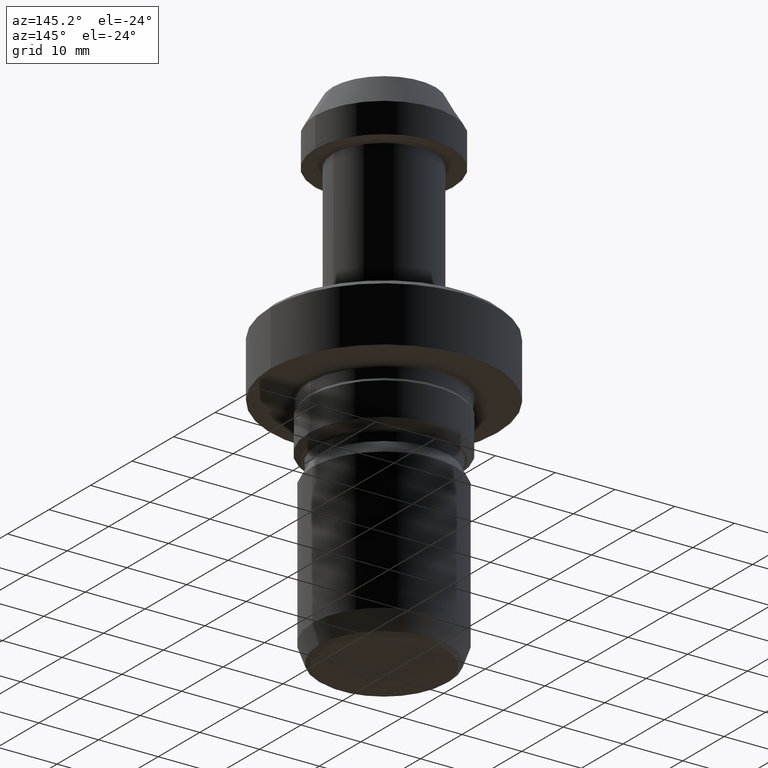
[diagram: clean part render]
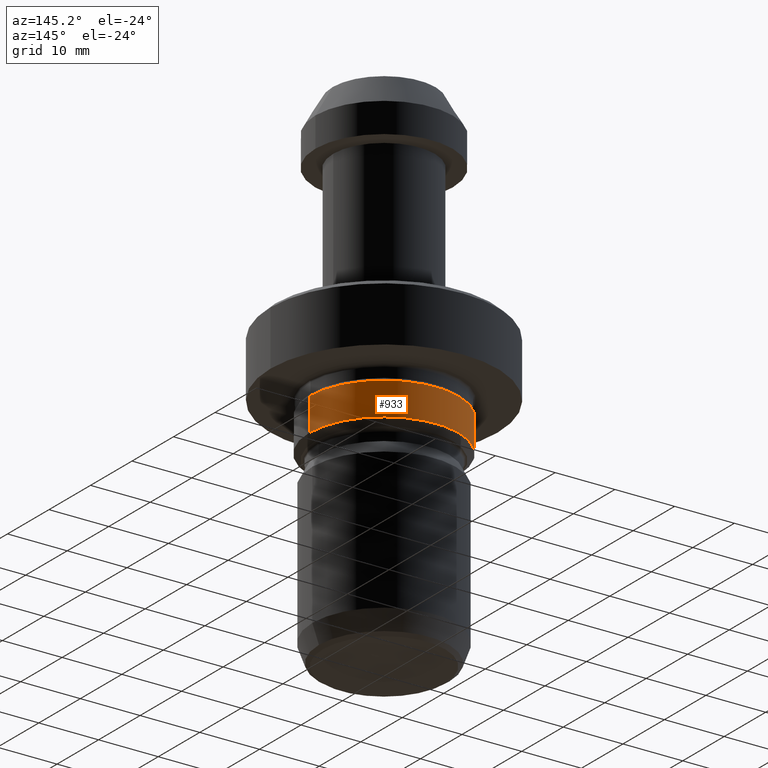
[diagram: same view with one face highlighted and labeled with its STEP entity id]
A machine part, auxiliary view. The second image highlights one B-rep face of the part: STEP entity #933.
In plain terms, the highlighted cylindrical surface (partial cylindrical patch) has radius 12.5 mm, axis along (-0, -0, 1).
Its self-contained STEP definition (entity closure, byte-faithful):
#28 = ORIENTED_EDGE ( 'NONE', *, *, #560, .F. ) ;
#121 = AXIS2_PLACEMENT_3D ( 'NONE', #849, #412, #228 ) ;
#228 = DIRECTION ( 'NONE',  ( 1.000000000000000000, 0.0000000000000000000, 0.0000000000000000000 ) ) ;
#247 = CARTESIAN_POINT ( 'NONE',  ( 12.50000000000000000, 0.0000000000000000000, 0.0000000000000000000 ) ) ;
#267 = VERTEX_POINT ( 'NONE', #959 ) ;
#302 = DIRECTION ( 'NONE',  ( -0.0000000000000000000, -0.0000000000000000000, 1.000000000000000000 ) ) ;
#357 = LINE ( 'NONE', #247, #801 ) ;
#368 = EDGE_CURVE ( 'NONE', #979, #792, #652, .T. ) ;
#373 = CARTESIAN_POINT ( 'NONE',  ( 0.0000000000000000000, 0.0000000000000000000, -52.99999999999999300 ) ) ;
#412 = DIRECTION ( 'NONE',  ( -0.0000000000000000000, -0.0000000000000000000, 1.000000000000000000 ) ) ;
#425 = CYLINDRICAL_SURFACE ( 'NONE', #121, 12.50000000000000000 ) ;
#462 = DIRECTION ( 'NONE',  ( 1.000000000000000000, 0.0000000000000000000, 0.0000000000000000000 ) ) ;
#504 = CARTESIAN_POINT ( 'NONE',  ( -12.50000000000000000, 1.530808498934191500E-015, -47.49999999999999300 ) ) ;
#554 = EDGE_LOOP ( 'NONE', ( #576, #603, #806, #28 ) ) ;
#560 = EDGE_CURVE ( 'NONE', #979, #267, #357, .T. ) ;
#564 = CARTESIAN_POINT ( 'NONE',  ( -12.50000000000000000, 1.530808498934191500E-015, 0.0000000000000000000 ) ) ;
#576 = ORIENTED_EDGE ( 'NONE', *, *, #368, .T. ) ;
#603 = ORIENTED_EDGE ( 'NONE', *, *, #1095, .T. ) ;
#652 = CIRCLE ( 'NONE', #889, 12.50000000000000000 ) ;
#744 = VECTOR ( 'NONE', #1094, 1000.000000000000000 ) ;
#773 = DIRECTION ( 'NONE',  ( -0.0000000000000000000, -0.0000000000000000000, 1.000000000000000000 ) ) ;
#792 = VERTEX_POINT ( 'NONE', #861 ) ;
#801 = VECTOR ( 'NONE', #773, 1000.000000000000000 ) ;
#806 = ORIENTED_EDGE ( 'NONE', *, *, #1127, .F. ) ;
#832 = CARTESIAN_POINT ( 'NONE',  ( 0.0000000000000000000, 0.0000000000000000000, -47.49999999999999300 ) ) ;
#849 = CARTESIAN_POINT ( 'NONE',  ( 0.0000000000000000000, 0.0000000000000000000, 0.0000000000000000000 ) ) ;
#861 = CARTESIAN_POINT ( 'NONE',  ( -12.50000000000000000, 1.530808498934191500E-015, -52.99999999999999300 ) ) ;
#889 = AXIS2_PLACEMENT_3D ( 'NONE', #373, #996, #462 ) ;
#924 = DIRECTION ( 'NONE',  ( 1.000000000000000000, 0.0000000000000000000, 0.0000000000000000000 ) ) ;
#933 = ADVANCED_FACE ( 'NONE', ( #1136 ), #425, .T. ) ;
#935 = VERTEX_POINT ( 'NONE', #504 ) ;
#945 = AXIS2_PLACEMENT_3D ( 'NONE', #832, #302, #924 ) ;
#947 = CARTESIAN_POINT ( 'NONE',  ( 12.50000000000000000, 0.0000000000000000000, -52.99999999999999300 ) ) ;
#959 = CARTESIAN_POINT ( 'NONE',  ( 12.50000000000000000, 0.0000000000000000000, -47.49999999999999300 ) ) ;
#970 = LINE ( 'NONE', #564, #744 ) ;
#979 = VERTEX_POINT ( 'NONE', #947 ) ;
#996 = DIRECTION ( 'NONE',  ( -0.0000000000000000000, -0.0000000000000000000, 1.000000000000000000 ) ) ;
#1017 = CIRCLE ( 'NONE', #945, 12.50000000000000000 ) ;
#1094 = DIRECTION ( 'NONE',  ( -0.0000000000000000000, -0.0000000000000000000, 1.000000000000000000 ) ) ;
#1095 = EDGE_CURVE ( 'NONE', #792, #935, #970, .T. ) ;
#1127 = EDGE_CURVE ( 'NONE', #267, #935, #1017, .T. ) ;
#1136 = FACE_OUTER_BOUND ( 'NONE', #554, .T. ) ;